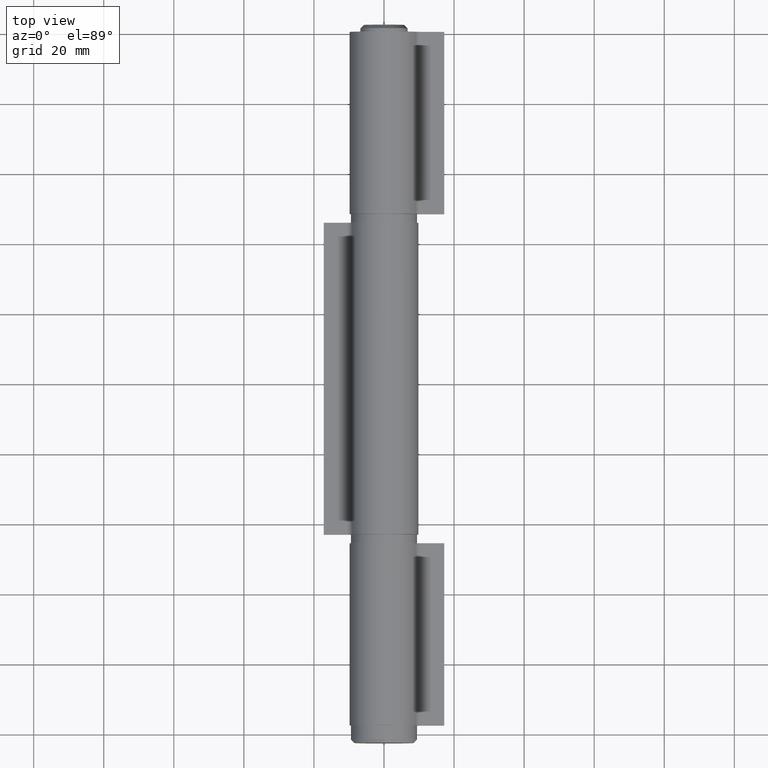
[diagram: clean part render]
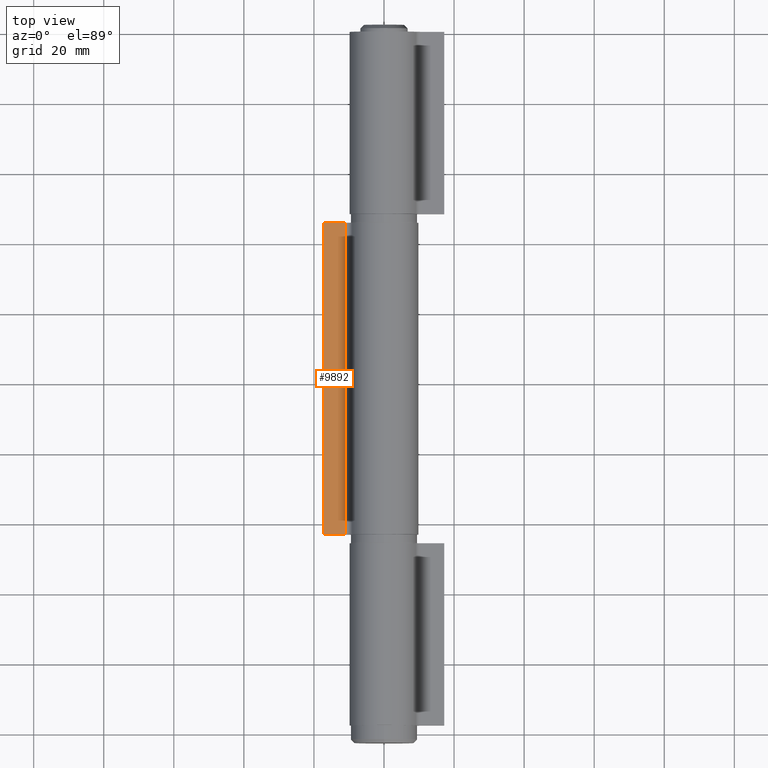
[diagram: same view with one face highlighted and labeled with its STEP entity id]
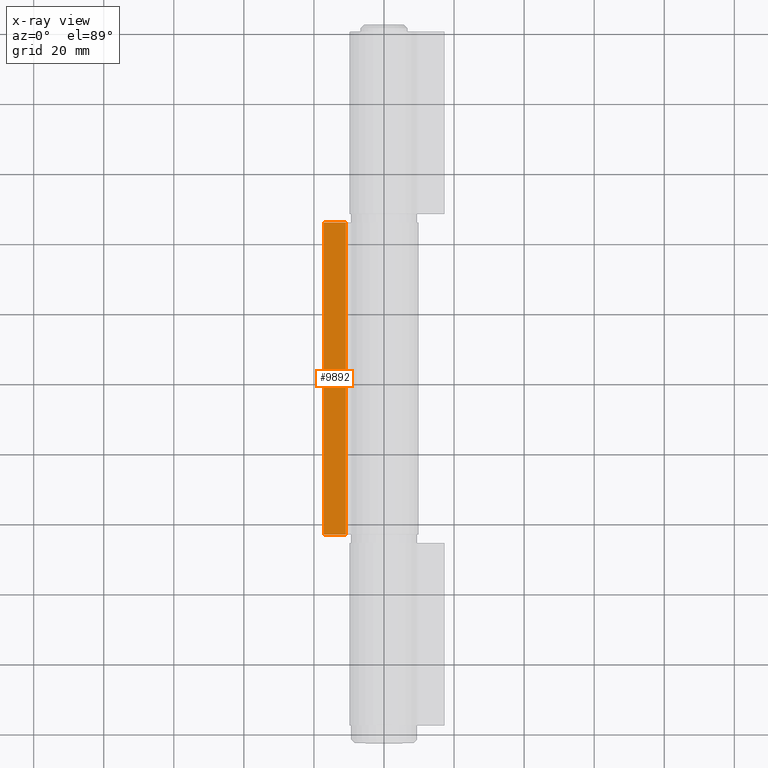
[diagram: x-ray of the same camera — body ghosted, the highlighted face saturated]
A machine part, top view. The second image highlights one B-rep face of the part: STEP entity #9892.
The next image is the same camera in x-ray: the body ghosted, the highlighted face saturated — about 0% of this face is hidden behind the body in this view.
In plain terms, the highlighted planar face has unit normal (-0, 0, -1).
Its self-contained STEP definition (entity closure, byte-faithful):
#510 = ORIENTED_EDGE ( 'NONE', *, *, #7752, .T. ) ;
#780 = LINE ( 'NONE', #12183, #3200 ) ;
#882 = EDGE_CURVE ( 'NONE', #1668, #9828, #780, .T. ) ;
#1468 = LINE ( 'NONE', #5559, #5251 ) ;
#1643 = CARTESIAN_POINT ( 'NONE',  ( -2.549999999999998934, -44.50000000000000000, -10.88749282433747645 ) ) ;
#1668 = VERTEX_POINT ( 'NONE', #12258 ) ;
#1674 = CARTESIAN_POINT ( 'NONE',  ( -2.550000000000000266, 44.50000000000000000, -17.19999999999999929 ) ) ;
#2004 = CARTESIAN_POINT ( 'NONE',  ( -2.550000000000000266, -44.50000000000000000, -17.19999999999999929 ) ) ;
#2656 = ORIENTED_EDGE ( 'NONE', *, *, #882, .F. ) ;
#2688 = DIRECTION ( 'NONE',  ( -1.374036834892580531E-16, 0.000000000000000000, -1.000000000000000000 ) ) ;
#2712 = DIRECTION ( 'NONE',  ( 1.374036834892580531E-16, 0.000000000000000000, 1.000000000000000000 ) ) ;
#2778 = LINE ( 'NONE', #3989, #8867 ) ;
#3200 = VECTOR ( 'NONE', #3899, 1000.000000000000000 ) ;
#3899 = DIRECTION ( 'NONE',  ( -0.000000000000000000, -1.000000000000000000, -0.000000000000000000 ) ) ;
#3989 = CARTESIAN_POINT ( 'NONE',  ( -2.550000000000000266, -44.50000000000000000, -17.19999999999999929 ) ) ;
#4535 = VERTEX_POINT ( 'NONE', #2004 ) ;
#4573 = VERTEX_POINT ( 'NONE', #11881 ) ;
#5218 = EDGE_LOOP ( 'NONE', ( #510, #2656, #9292, #11640 ) ) ;
#5243 = EDGE_CURVE ( 'NONE', #4573, #1668, #1468, .T. ) ;
#5251 = VECTOR ( 'NONE', #2712, 1000.000000000000000 ) ;
#5559 = CARTESIAN_POINT ( 'NONE',  ( -2.550000000000000266, 44.50000000000000000, -17.19999999999999929 ) ) ;
#6055 = AXIS2_PLACEMENT_3D ( 'NONE', #1674, #8411, #2688 ) ;
#6109 = VECTOR ( 'NONE', #12581, 1000.000000000000000 ) ;
#7144 = EDGE_CURVE ( 'NONE', #4573, #4535, #7324, .T. ) ;
#7324 = LINE ( 'NONE', #7658, #6109 ) ;
#7658 = CARTESIAN_POINT ( 'NONE',  ( -2.550000000000000266, 44.50000000000000000, -17.19999999999999929 ) ) ;
#7752 = EDGE_CURVE ( 'NONE', #4535, #9828, #2778, .T. ) ;
#8411 = DIRECTION ( 'NONE',  ( 1.000000000000000000, 0.000000000000000000, -1.374036834892580531E-16 ) ) ;
#8867 = VECTOR ( 'NONE', #9944, 1000.000000000000000 ) ;
#9292 = ORIENTED_EDGE ( 'NONE', *, *, #5243, .F. ) ;
#9828 = VERTEX_POINT ( 'NONE', #1643 ) ;
#9892 = ADVANCED_FACE ( 'NONE', ( #10818 ), #12299, .F. ) ;
#9944 = DIRECTION ( 'NONE',  ( 1.374036834892580531E-16, 0.000000000000000000, 1.000000000000000000 ) ) ;
#10818 = FACE_OUTER_BOUND ( 'NONE', #5218, .T. ) ;
#11640 = ORIENTED_EDGE ( 'NONE', *, *, #7144, .T. ) ;
#11881 = CARTESIAN_POINT ( 'NONE',  ( -2.550000000000000266, 44.50000000000000000, -17.19999999999999929 ) ) ;
#12183 = CARTESIAN_POINT ( 'NONE',  ( -2.549999999999998934, 44.50000000000000000, -10.88749282433747645 ) ) ;
#12258 = CARTESIAN_POINT ( 'NONE',  ( -2.549999999999998934, 44.50000000000000000, -10.88749282433747645 ) ) ;
#12299 = PLANE ( 'NONE',  #6055 ) ;
#12581 = DIRECTION ( 'NONE',  ( -0.000000000000000000, -1.000000000000000000, -0.000000000000000000 ) ) ;